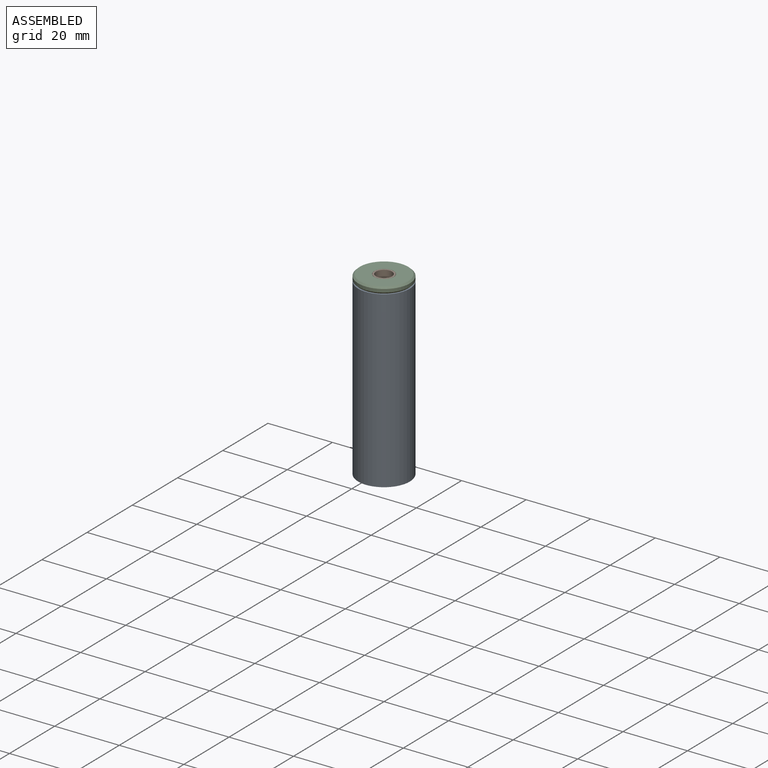
[diagram: assembled view]
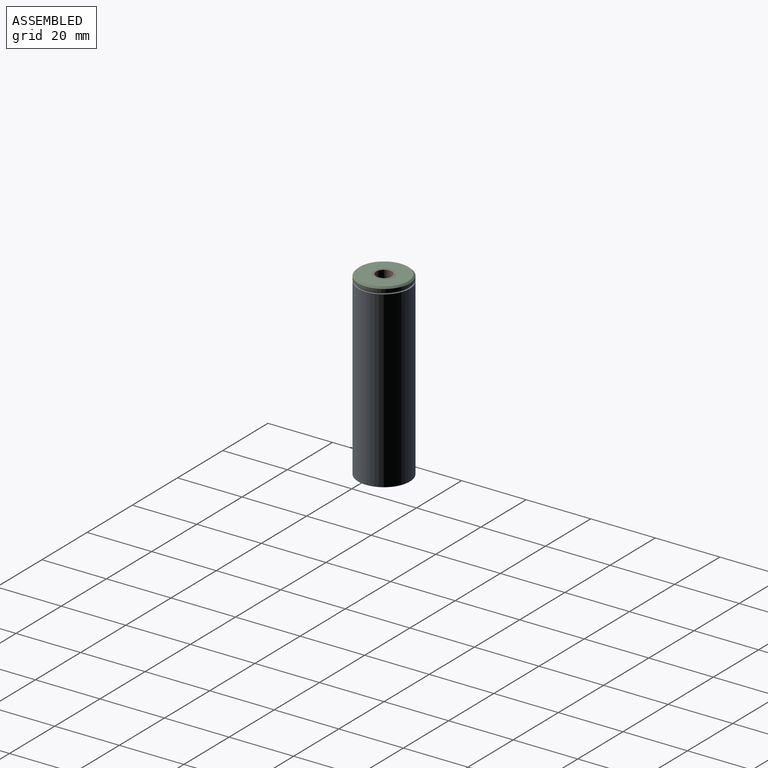
[diagram: assembled view, second angle]
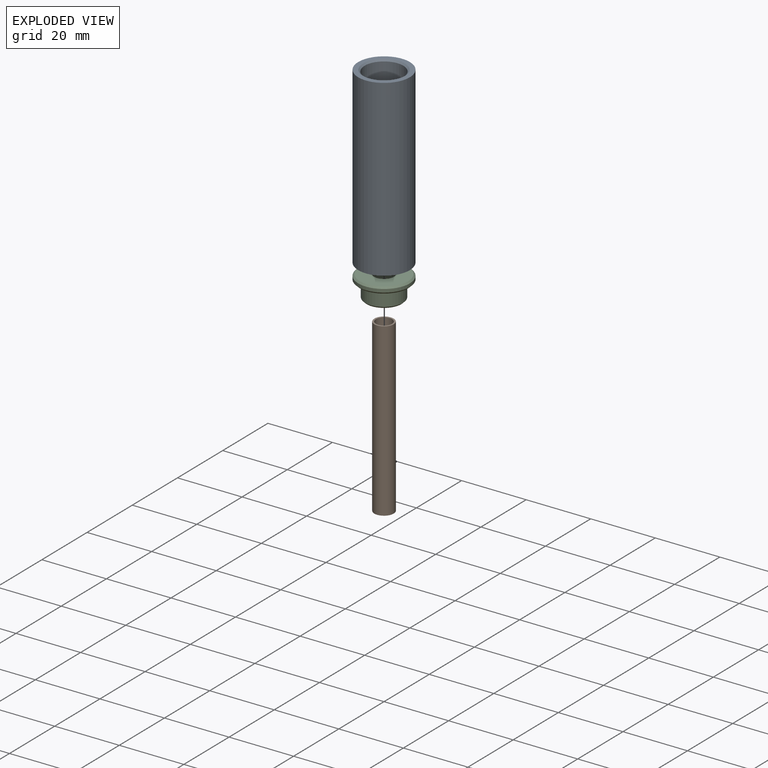
[diagram: exploded view]
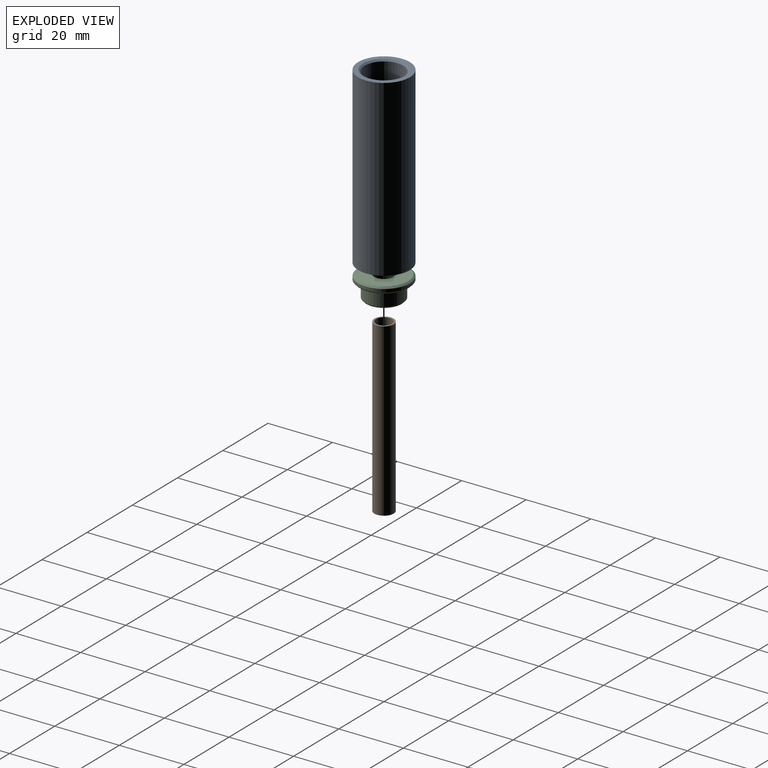
[diagram: exploded view, second angle]
ASSEMBLY  parts=3 mates=2
PART A: 6 faces, bbox 16x16x54 mm
  f0: cylinder r=8mm len=54mm, axis (0,0,-1), area 2714.3mm2, adj f1,f2
  f1: plane 16x16mm, normal (0,0,1), area 68.3mm2, adj f0,f5
  f2: plane 16x16mm, normal (0,0,-1), area 201.1mm2, adj f0
  f3: cylinder r=6mm len=51.5mm, axis (0,0,1), area 1941.5mm2, adj f4,f5
  f4: plane 12x12mm, normal (0,0,1), area 113.1mm2, adj f3
  f5: cone r=6mm half-angle=45deg, axis (0,0,1), area 27.8mm2, adj f1,f3
PART B: 5 faces, bbox 6x6x53 mm
  f0: cylinder r=3mm len=53mm, axis (0,0,-1), area 999mm2, adj f1,f2
  f1: plane 6x6mm, normal (0,0,1), area 8.6mm2, adj f0,f3
  f2: plane 6x6mm, normal (0,0,-1), area 28.3mm2, adj f0
  f3: cylinder r=2.5mm len=52mm, axis (0,0,1), area 816.8mm2, adj f1,f4
  f4: plane 5x5mm, normal (0,0,1), area 19.6mm2, adj f3
PART C: 9 faces, bbox 16x16x7 mm
  f0: cylinder r=5.9mm len=11.8mm, axis (0,0,-1), area 166.8mm2, adj f2,f5
  f1: plane 10.8x10.8mm, normal (0,0,-1), area 62.4mm2, adj f2,f8
  f2: cone r=5.9mm half-angle=45deg, axis (0,0,1), area 25.1mm2, adj f0,f1
  f3: cylinder r=8mm len=16mm, axis (0,0,-1), area 50.3mm2, adj f6,f7
  f4: plane 15x15mm, normal (0,0,1), area 147.5mm2, adj f6,f8
  f5: plane 15x15mm, normal (0,0,-1), area 67.4mm2, adj f0,f7
  f6: cone r=7.5mm half-angle=45deg, axis (0,0,-1), area 34.4mm2, adj f3,f4
  f7: cone r=8mm half-angle=45deg, axis (0,0,1), area 34.4mm2, adj f3,f5
  f8: cylinder r=3.05mm len=7mm, axis (0,0,-1), area 134.1mm2, adj f1,f4
PLACE A at identity
PLACE B t=(0,0,3)mm
PLACE C t=(0,0,49)mm
MATE fastened C.f3 <-> A.f0  axis (0,0,-1) through (0,0,54)mm
MATE slider B.f0 <-> C.f8  axis (0,0,-1) through (0,0,29.5)mm
